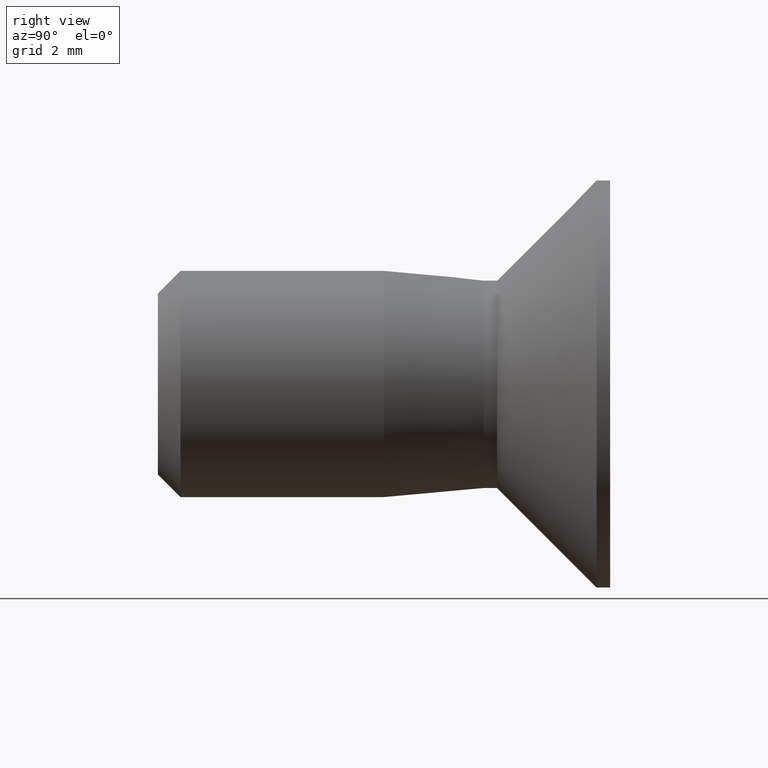
[diagram: clean part render]
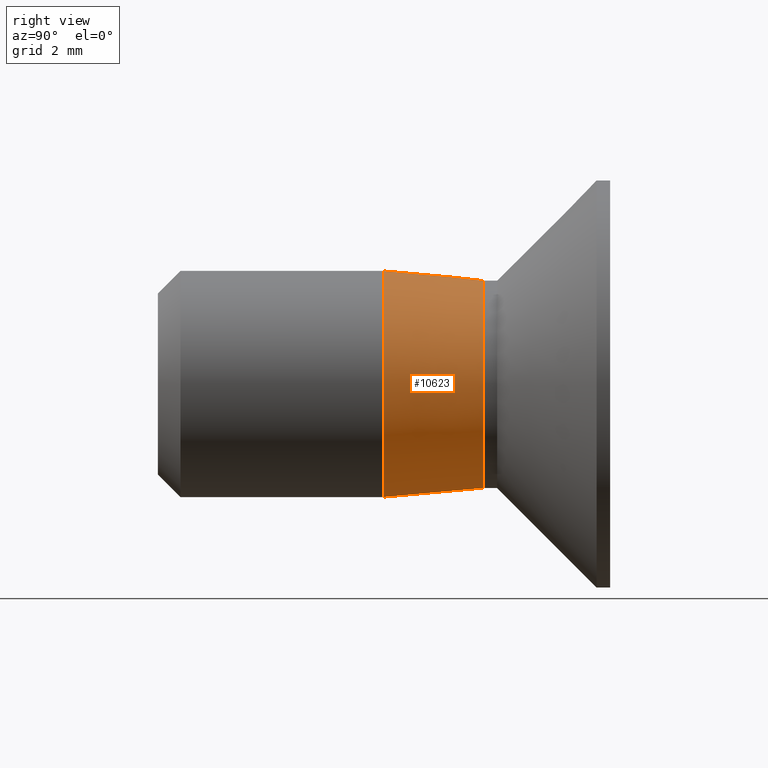
[diagram: same view with one face highlighted and labeled with its STEP entity id]
A machine part, right view. The second image highlights one B-rep face of the part: STEP entity #10623.
In plain terms, the highlighted conical surface has half-angle 5.194 deg.
Its self-contained STEP definition (entity closure, byte-faithful):
#528 = VERTEX_POINT ( 'NONE', #11112 ) ;
#1101 = EDGE_LOOP ( 'NONE', ( #14317 ) ) ;
#1442 = DIRECTION ( 'NONE',  ( 0.0000000000000000000, 0.0000000000000000000, -1.000000000000000000 ) ) ;
#1629 = DIRECTION ( 'NONE',  ( -0.0000000000000000000, -1.000000000000000000, -0.0000000000000000000 ) ) ;
#3314 = CIRCLE ( 'NONE', #11671, 2.500000000000000900 ) ;
#3388 = VERTEX_POINT ( 'NONE', #8734 ) ;
#3443 = DIRECTION ( 'NONE',  ( -0.0000000000000000000, -1.000000000000000000, -0.0000000000000000000 ) ) ;
#3468 = EDGE_LOOP ( 'NONE', ( #10669 ) ) ;
#5131 = CARTESIAN_POINT ( 'NONE',  ( 0.0000000000000000000, 7.200000000000000200, 0.0000000000000000000 ) ) ;
#5282 = DIRECTION ( 'NONE',  ( -0.0000000000000000000, -1.000000000000000000, -0.0000000000000000000 ) ) ;
#6273 = EDGE_CURVE ( 'NONE', #3388, #3388, #3314, .T. ) ;
#6409 = CARTESIAN_POINT ( 'NONE',  ( 0.0000000000000000000, 4.999999999999999100, 0.0000000000000000000 ) ) ;
#7225 = CIRCLE ( 'NONE', #8445, 2.300000000000000700 ) ;
#8236 = CARTESIAN_POINT ( 'NONE',  ( 0.0000000000000000000, 4.999999999999999100, 0.0000000000000000000 ) ) ;
#8445 = AXIS2_PLACEMENT_3D ( 'NONE', #5131, #5282, #12972 ) ;
#8734 = CARTESIAN_POINT ( 'NONE',  ( 0.0000000000000000000, 4.999999999999999100, -2.500000000000000900 ) ) ;
#10623 = ADVANCED_FACE ( 'NONE', ( #11825, #13595 ), #14466, .T. ) ;
#10669 = ORIENTED_EDGE ( 'NONE', *, *, #6273, .F. ) ;
#11112 = CARTESIAN_POINT ( 'NONE',  ( 0.0000000000000000000, 7.200000000000000200, -2.300000000000000700 ) ) ;
#11671 = AXIS2_PLACEMENT_3D ( 'NONE', #8236, #1629, #1442 ) ;
#11825 = FACE_BOUND ( 'NONE', #1101, .T. ) ;
#12972 = DIRECTION ( 'NONE',  ( 0.0000000000000000000, 0.0000000000000000000, -1.000000000000000000 ) ) ;
#13595 = FACE_OUTER_BOUND ( 'NONE', #3468, .T. ) ;
#14317 = ORIENTED_EDGE ( 'NONE', *, *, #14468, .T. ) ;
#14466 = CONICAL_SURFACE ( 'NONE', #14500, 2.500000000000000900, 0.09065988720074513700 ) ;
#14468 = EDGE_CURVE ( 'NONE', #528, #528, #7225, .T. ) ;
#14499 = DIRECTION ( 'NONE',  ( 0.0000000000000000000, 0.0000000000000000000, -1.000000000000000000 ) ) ;
#14500 = AXIS2_PLACEMENT_3D ( 'NONE', #6409, #3443, #14499 ) ;